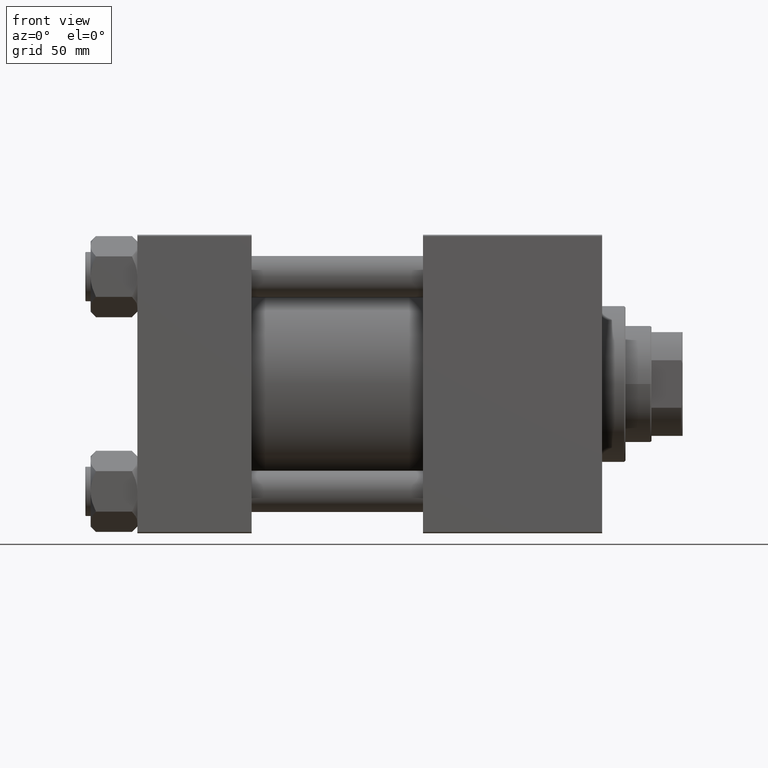
[diagram: clean part render]
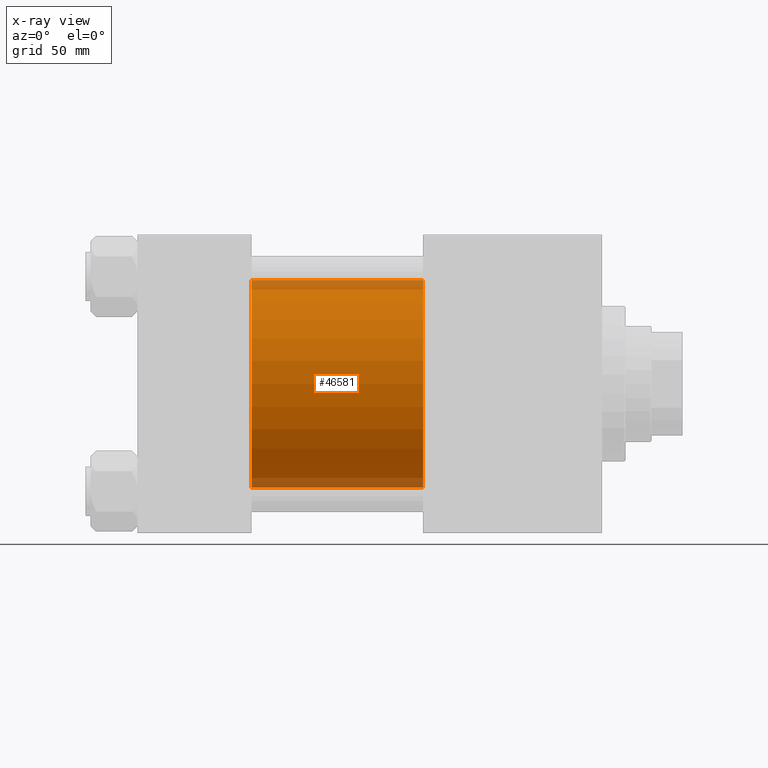
[diagram: x-ray — body ghosted, one internal face saturated and labeled with its STEP entity id]
A machine part, front view, then the same camera in x-ray: the body is ghosted and one INTERNAL B-rep face — a face not visible from any outside direction — is saturated and labeled: STEP entity #46581.
In plain terms, the highlighted cylindrical surface (partial cylindrical patch) has radius 40 mm, axis along (-1, -0, -0).
Its self-contained STEP definition (entity closure, byte-faithful):
#753 = EDGE_CURVE ( 'NONE', #47697, #12472, #29602, .T. ) ;
#2272 = CARTESIAN_POINT ( 'NONE',  ( 110.0000000000000000, -2.602085213965210642E-15, 40.00000000000000000 ) ) ;
#7158 = VERTEX_POINT ( 'NONE', #50647 ) ;
#8297 = EDGE_CURVE ( 'NONE', #12472, #17641, #12792, .T. ) ;
#8569 = CIRCLE ( 'NONE', #40573, 40.00000000000000000 ) ;
#10334 = AXIS2_PLACEMENT_3D ( 'NONE', #12540, #43646, #43392 ) ;
#12472 = VERTEX_POINT ( 'NONE', #37598 ) ;
#12540 = CARTESIAN_POINT ( 'NONE',  ( 44.00000000000000000, -2.602085213965210642E-15, 0.000000000000000000 ) ) ;
#12792 = CIRCLE ( 'NONE', #10334, 40.00000000000000000 ) ;
#14190 = DIRECTION ( 'NONE',  ( -1.000000000000000000, -0.000000000000000000, -0.000000000000000000 ) ) ;
#17361 = DIRECTION ( 'NONE',  ( -1.000000000000000000, -0.000000000000000000, -0.000000000000000000 ) ) ;
#17641 = VERTEX_POINT ( 'NONE', #30560 ) ;
#20413 = EDGE_LOOP ( 'NONE', ( #41817, #32142, #47970, #44945 ) ) ;
#20824 = DIRECTION ( 'NONE',  ( 0.000000000000000000, 0.000000000000000000, 1.000000000000000000 ) ) ;
#24570 = CARTESIAN_POINT ( 'NONE',  ( 110.0000000000000000, 2.296501982624201990E-15, -40.00000000000000000 ) ) ;
#27943 = AXIS2_PLACEMENT_3D ( 'NONE', #40377, #28546, #20824 ) ;
#28053 = FACE_OUTER_BOUND ( 'NONE', #20413, .T. ) ;
#28181 = EDGE_CURVE ( 'NONE', #47697, #7158, #8569, .T. ) ;
#28546 = DIRECTION ( 'NONE',  ( -1.000000000000000000, -0.000000000000000000, -0.000000000000000000 ) ) ;
#28928 = LINE ( 'NONE', #24570, #29504 ) ;
#29040 = CYLINDRICAL_SURFACE ( 'NONE', #27943, 40.00000000000000000 ) ;
#29504 = VECTOR ( 'NONE', #17361, 1000.000000000000000 ) ;
#29602 = LINE ( 'NONE', #37334, #32362 ) ;
#30511 = DIRECTION ( 'NONE',  ( 1.000000000000000000, 0.000000000000000000, 0.000000000000000000 ) ) ;
#30560 = CARTESIAN_POINT ( 'NONE',  ( 44.00000000000000000, 2.296501982624201990E-15, -40.00000000000000000 ) ) ;
#32142 = ORIENTED_EDGE ( 'NONE', *, *, #44093, .T. ) ;
#32362 = VECTOR ( 'NONE', #14190, 1000.000000000000000 ) ;
#37334 = CARTESIAN_POINT ( 'NONE',  ( 110.0000000000000000, -2.602085213965210642E-15, 40.00000000000000000 ) ) ;
#37598 = CARTESIAN_POINT ( 'NONE',  ( 44.00000000000000000, -2.602085213965210642E-15, 40.00000000000000000 ) ) ;
#40377 = CARTESIAN_POINT ( 'NONE',  ( 110.0000000000000000, -2.602085213965210642E-15, 0.000000000000000000 ) ) ;
#40573 = AXIS2_PLACEMENT_3D ( 'NONE', #50043, #30511, #50292 ) ;
#41817 = ORIENTED_EDGE ( 'NONE', *, *, #28181, .T. ) ;
#43392 = DIRECTION ( 'NONE',  ( 0.000000000000000000, 0.000000000000000000, -1.000000000000000000 ) ) ;
#43646 = DIRECTION ( 'NONE',  ( 1.000000000000000000, 0.000000000000000000, 0.000000000000000000 ) ) ;
#44093 = EDGE_CURVE ( 'NONE', #7158, #17641, #28928, .T. ) ;
#44945 = ORIENTED_EDGE ( 'NONE', *, *, #753, .F. ) ;
#46581 = ADVANCED_FACE ( 'NONE', ( #28053 ), #29040, .F. ) ;
#47697 = VERTEX_POINT ( 'NONE', #2272 ) ;
#47970 = ORIENTED_EDGE ( 'NONE', *, *, #8297, .F. ) ;
#50043 = CARTESIAN_POINT ( 'NONE',  ( 110.0000000000000000, -2.602085213965210642E-15, 0.000000000000000000 ) ) ;
#50292 = DIRECTION ( 'NONE',  ( 0.000000000000000000, 0.000000000000000000, -1.000000000000000000 ) ) ;
#50647 = CARTESIAN_POINT ( 'NONE',  ( 110.0000000000000000, 2.296501982624201990E-15, -40.00000000000000000 ) ) ;